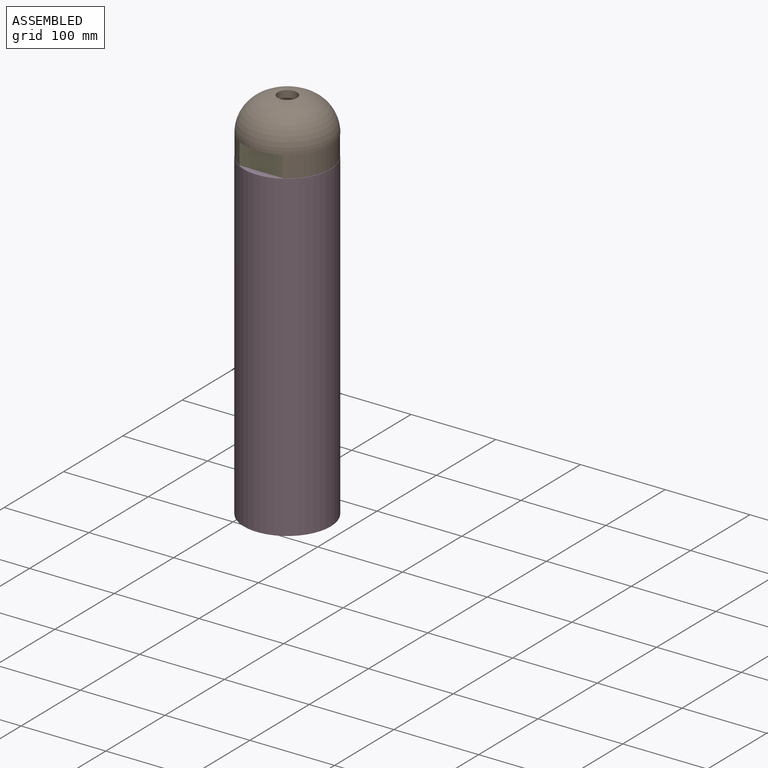
[diagram: assembled view]
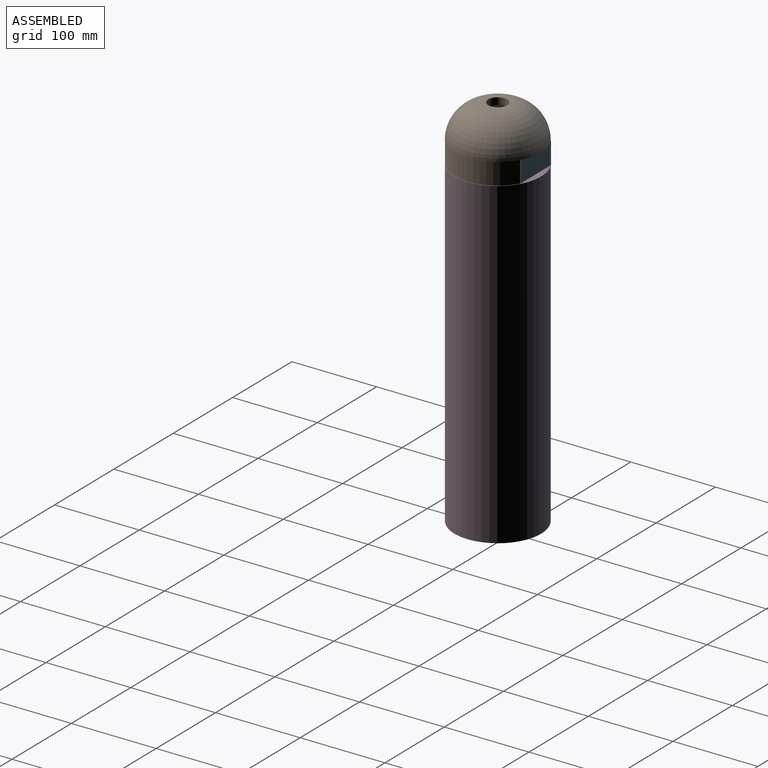
[diagram: assembled view, second angle]
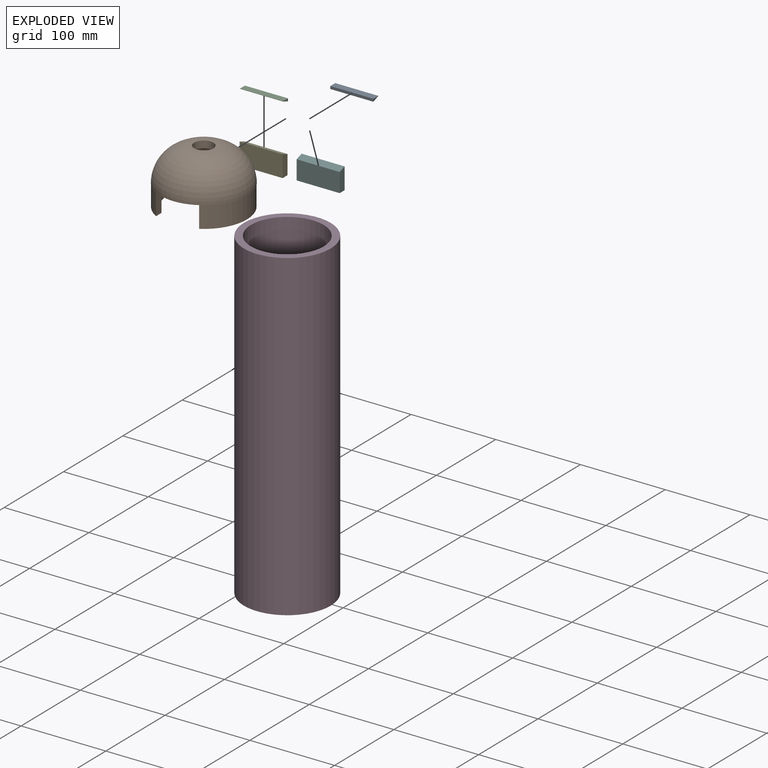
[diagram: exploded view]
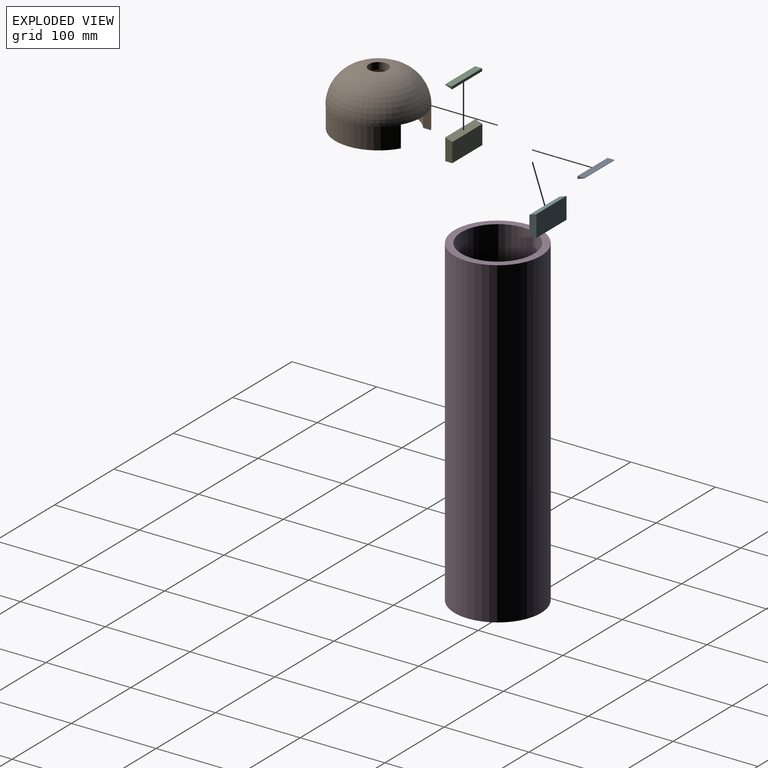
[diagram: exploded view, second angle]
ASSEMBLY  parts=6 mates=2
PART A: 6 faces, bbox 50.8x8.3x3.2 mm
  f0: plane 50.8x8.26mm, normal (0,0,1), area 419.4mm2, adj f1,f3,f4,f5
  f1: plane 50.8x3.18mm, normal (0,-1,0), area 161.3mm2, adj f0,f2,f4,f5
  f2: plane 50.8x8.26mm, normal (0,0.33,-0.95), area 443.6mm2, adj f1,f3,f4,f5
  f3: plane 50.8x0.33mm, normal (0,1,0), area 16.8mm2, adj f0,f2,f4,f5
  f4: plane 8.26x3.18mm, normal (1,0,0), area 14.5mm2, adj f0,f1,f2,f3
  f5: plane 8.26x3.18mm, normal (-1,0,0), area 14.5mm2, adj f0,f1,f2,f3
PART B: 15 faces, bbox 102.4x102.4x65.3 mm
  f0: cylinder r=43.17mm len=69.97mm, axis (0,0,1), area 2071.9mm2, adj f2,f3,f12,f13
  f1: cylinder r=51.05mm len=88.68mm, axis (0,0,1), area 2728.8mm2, adj f2,f3,f12,f13
  f2: plane 88.68x25.75mm, normal (0,0,-1), area 744.7mm2, adj f0,f1,f12,f13
  f3: plane 102.45x102.45mm, normal (0,0,-1), area 923.9mm2, adj f0,f1,f4,f6,f8,f9,f11,f12
  f4: torus R=11.36mm, axis (0,0,-1), area 14455mm2, adj f3,f5
  f5: cylinder r=11.36mm len=22.72mm, axis (0,0,-1), area 580mm2, adj f4,f6
  f6: torus R=11.36mm, axis (0,0,-1), area 9887mm2, adj f3,f5,f7
  f7: plane 55.84x10.27mm, normal (0,0,1), area 1mm2, adj f6,f8
  f8: cylinder r=43.17mm len=69.67mm, axis (0,0,1), area 2059.2mm2, adj f3,f7,f10,f11,f14
  f9: cylinder r=51.05mm len=88.44mm, axis (0,0,1), area 2717mm2, adj f3,f10,f11,f14
  f10: plane 88.44x25.55mm, normal (0,0,-1), area 740.9mm2, adj f8,f9,f11,f14
  f11: plane 25.4x9.39mm, normal (-1,0,0), area 238.4mm2, adj f3,f8,f9,f10
  f12: plane 25.4x9.35mm, normal (1,0,0), area 237.6mm2, adj f0,f1,f2,f3
  f13: plane 25.4x9.35mm, normal (1,0,0), area 237.6mm2, adj f0,f1,f2,f3
  f14: plane 25.4x9.39mm, normal (-1,0,0), area 238.4mm2, adj f3,f8,f9,f10
PART C: same geometry as A
PART D: 4 faces, bbox 102.5x102.5x381 mm
  f0: plane 102.46x102.46mm, normal (0,0,1), area 2443.2mm2, adj f1,f3
  f1: cylinder r=42.98mm len=381mm, axis (0,0,-1), area 102881.9mm2, adj f0,f2
  f2: plane 102.46x102.46mm, normal (0,0,-1), area 2443.2mm2, adj f1,f3
  f3: cylinder r=51.23mm len=381mm, axis (0,0,-1), area 122643.5mm2, adj f0,f2
PART E: 6 faces, bbox 50.8x8.3x25.4 mm
  f0: plane 50.8x25.4mm, normal (0,-1,0), area 1290.3mm2, adj f1,f3,f4,f5
  f1: plane 50.8x8.26mm, normal (0,0,-1), area 419.4mm2, adj f0,f2,f4,f5
  f2: plane 50.8x22.56mm, normal (0,1,0), area 1145.8mm2, adj f1,f3,f4,f5
  f3: plane 50.8x8.26mm, normal (0,0.33,0.95), area 443.6mm2, adj f0,f2,f4,f5
  f4: plane 25.4x8.26mm, normal (-1,0,0), area 197.9mm2, adj f0,f1,f2,f3
  f5: plane 25.4x8.26mm, normal (1,0,0), area 197.9mm2, adj f0,f1,f2,f3
PART F: same geometry as E
PLACE A rot(axis=(-1,0,0),0deg) t=(-81.9,20.31,14.72)mm
PLACE B t=(-3.63,-15.38,14.73)mm
PLACE C rot(axis=(0,0,1),180deg) t=(-29.14,-51.32,15.46)mm
PLACE D t=(-55.08,-15.38,-320.96)mm
PLACE E t=(-29.63,-59.59,-10.33)mm
PLACE F rot(axis=(0,0,1),180deg) t=(-81.9,28.56,-11.02)mm
MATE planar F.f3 <-> A.f2  axis (0,-0.33,0.95) through (-56.5,24.44,12.96)mm
MATE cylindrical D.f1 <-> B.f0  axis (0,0,1) through (-55.08,-15.38,-10.93)mm
